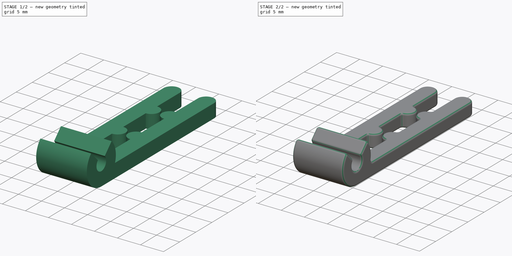
[diagram: build sequence overview — one tinted view per stage of 2, left to right]
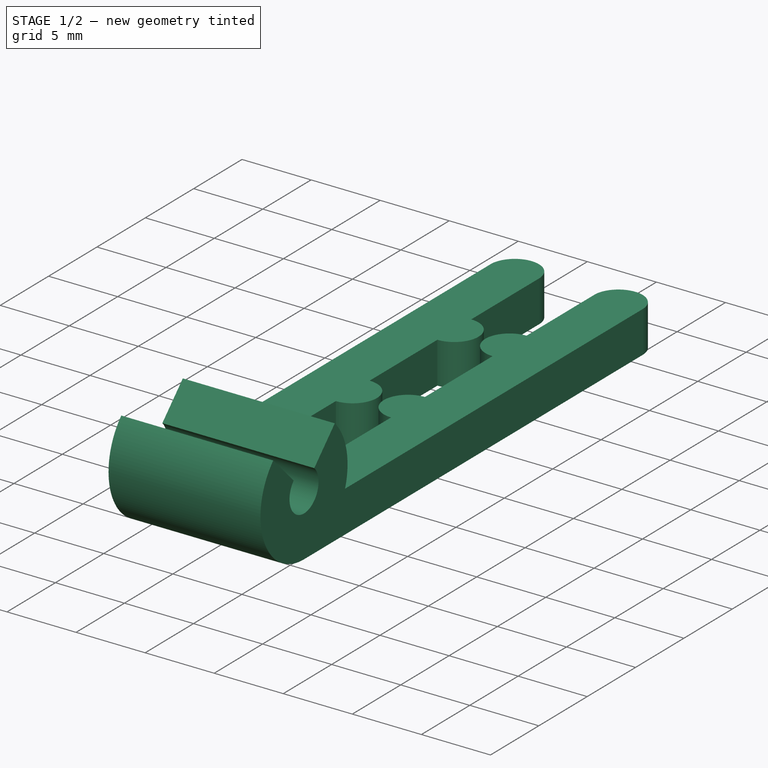
[diagram: stage 1 of 2 — iso view after this stage's code; geometry added in this stage tinted green]
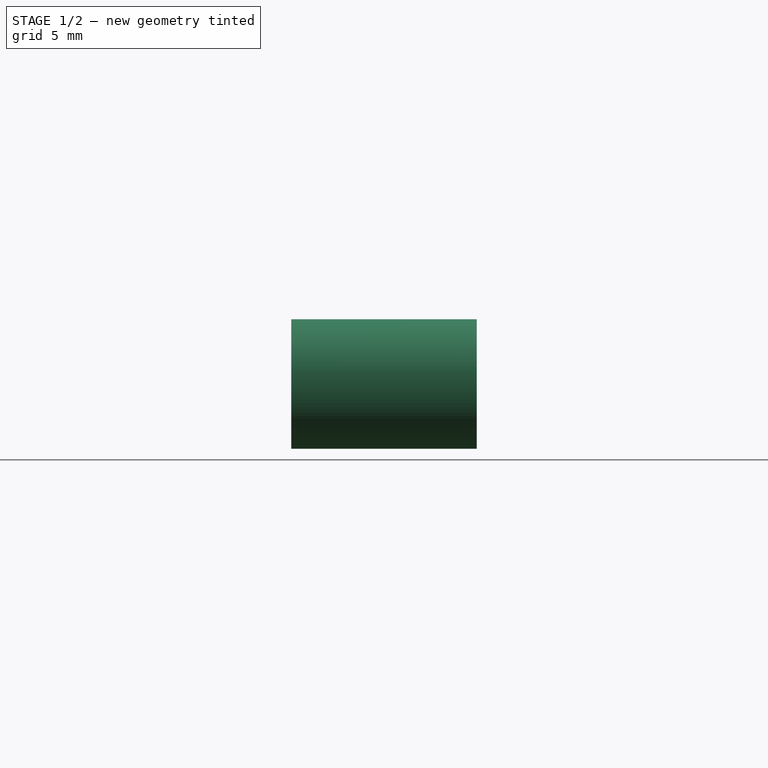
[diagram: stage 1 of 2 — front view after this stage's code; geometry added in this stage tinted green]
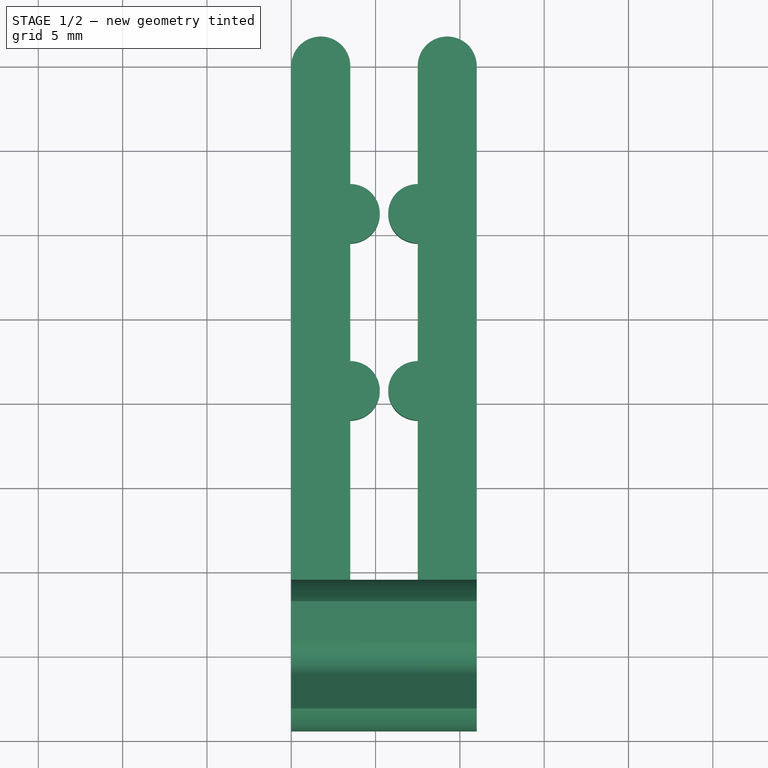
[diagram: stage 1 of 2 — top view after this stage's code; geometry added in this stage tinted green]
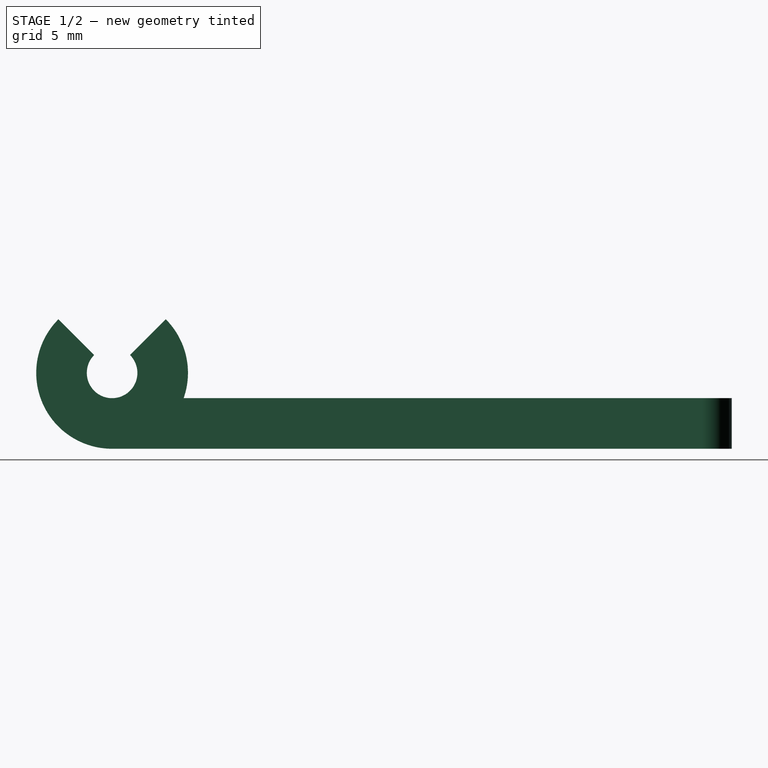
[diagram: stage 1 of 2 — right view after this stage's code; geometry added in this stage tinted green]
FCSTD DOCUMENT  (FreeCAD 0.18R4 (GitTag))
Label: sock_clip
License: All rights reserved
LicenseURL: http://en.wikipedia.org/wiki/All_rights_reserved
objects: Sketcher::SketchObject×3, PartDesign::Pad×2, PartDesign::Body×2, Part::MultiFuse×1, Part::Fillet×1
note: 11 computed .brp shape members not serialized (recipe doc carries the construction recipe); baked Part::Feature solids carry a one-line shape summary decoded from their .brp

FEATURE [Sketcher::SketchObject] Sketch  label="SketchXY"
  MapMode = 5
  Support = -> [XY_Plane001]
  expr: Constraints[19] = Constraints.clip_thickness
  expr: Constraints[53] = Constraints.clip_thickness
  expr: Constraints[52] = Constraints.clip_thickness
  expr: Constraints[51] = Constraints.clip_thickness
  expr: Constraints[33] = Constraints.clip_thickness
  expr: Constraints[20] = 2 * Constraints.clip_thickness
  expr: Constraints[14] = Constraints.clip_thickness
  sketch-geometry (19):
    g0: LineSegment StartX=0 StartY=0 StartZ=0 EndX=0 EndY=35 EndZ=0
    g1: LineSegment [constr] StartX=3.5 StartY=35 StartZ=0 EndX=0 EndY=35 EndZ=0
    g2: ArcOfCircle CenterX=1.75 CenterY=35 CenterZ=0 NormalX=0 NormalY=0 NormalZ=1 AngleXU=0 Radius=1.75 StartAngle=-1.8e-15 EndAngle=3.14159
    g3: LineSegment StartX=3.5 StartY=35 StartZ=0 EndX=3.5 EndY=28 EndZ=0
    g4: ArcOfCircle CenterX=3.5 CenterY=26.25 CenterZ=0 NormalX=0 NormalY=0 NormalZ=1 AngleXU=0 Radius=1.75 StartAngle=4.71239 EndAngle=7.85398
    g5: LineSegment StartX=3.5 StartY=24.5 StartZ=0 EndX=3.5 EndY=17.5 EndZ=0
    g6: ArcOfCircle CenterX=3.5 CenterY=15.75 CenterZ=0 NormalX=0 NormalY=0 NormalZ=1 AngleXU=0 Radius=1.75 StartAngle=4.71239 EndAngle=7.85398
    g7: LineSegment StartX=7.5 StartY=17.5 StartZ=0 EndX=7.5 EndY=24.5 EndZ=0
    g8: LineSegment StartX=7.5 StartY=28 StartZ=0 EndX=7.5 EndY=35 EndZ=0
    g9: LineSegment StartX=11 StartY=35 StartZ=0 EndX=11 EndY=0 EndZ=0
    g10: LineSegment StartX=3.5 StartY=14 StartZ=0 EndX=3.5 EndY=3.5 EndZ=0
    g11: LineSegment StartX=3.5 StartY=3.5 StartZ=0 EndX=7.5 EndY=3.5 EndZ=0
    g12: LineSegment StartX=7.5 StartY=3.5 StartZ=0 EndX=7.5 EndY=14 EndZ=0
    g13: LineSegment StartX=11 StartY=0 StartZ=0 EndX=0 EndY=0 EndZ=0
    g14: ArcOfCircle CenterX=7.5 CenterY=15.75 CenterZ=0 NormalX=0 NormalY=0 NormalZ=1 AngleXU=0 Radius=1.75 StartAngle=1.5708 EndAngle=4.71239
    g15: ArcOfCircle CenterX=7.5 CenterY=26.25 CenterZ=0 NormalX=0 NormalY=0 NormalZ=1 AngleXU=0 Radius=1.75 StartAngle=1.5708 EndAngle=4.71239
    g16: ArcOfCircle CenterX=9.25 CenterY=35 CenterZ=0 NormalX=0 NormalY=0 NormalZ=1 AngleXU=0 Radius=1.75 StartAngle=4e-16 EndAngle=3.14159
    g17: LineSegment [constr] StartX=5.75 StartY=15.75 StartZ=0 EndX=5.25 EndY=15.75 EndZ=0
    g18: LineSegment [constr] StartX=7.5 StartY=15.75 StartZ=0 EndX=5.75 EndY=15.75 EndZ=0
  constraints (61):
    c: Coincident(g0,g-1)
    c: Vertical(g0)
    c: DistanceY(g0,g0) = 35  'clip_height'
    c: Coincident(g1,g0)
    c: Horizontal(g1)
    c: Coincident(g2,g0)
    c: Coincident(g2,g1)
    c: PointOnObject(g2,g1)
    c: DistanceX(g1,g1) = 3.5  'clip_thickness'
    c: Coincident(g3,g2)
    c: Vertical(g3)
    c: Coincident(g4,g3)
    c: Vertical(g4,g3)
    c: Vertical(g4,g3)
    c: DistanceY(g4,g3) = 3.5
    c: Vertical(g5)
    c: Coincident(g6,g5)
    c: Vertical(g5,g6)
    c: Vertical(g6,g6)
    c: DistanceY(g6,g5) = 3.5
    c: DistanceY(g3,g3) = 7
    c: Equal(g3,g5)
    c: Coincident(g5,g4)
    c: Vertical(g7)
    c: Vertical(g8)
    c: PointOnObject(g9,g-1)
    c: Vertical(g9)
    c: Vertical(g10)
    c: Coincident(g10,g11)
    c: Horizontal(g11)
    c: Coincident(g11,g12)
    c: Vertical(g12)
    c: Coincident(g10,g6)
    c: DistanceY(g0,g10) = 3.5
    c: Coincident(g13,g9)
    c: Coincident(g13,g0)
    c: Coincident(g14,g12)
    c: Coincident(g14,g7)
    c: Coincident(g15,g7)
    c: Coincident(g15,g8)
    c: Coincident(g16,g8)
    c: Coincident(g16,g9)
    c: Vertical(g14,g7)
    c: Vertical(g7,g12)
    c: Vertical(g7,g15)
    c: Vertical(g15,g8)
    c: Horizontal(g8,g16)
    c: Horizontal(g16,g9)
    c: Equal(g8,g3)
    c: Equal(g7,g5)
    c: Equal(g9,g0)
    c: DistanceY(g7,g8) = 3.5
    c: DistanceY(g12,g7) = 3.5
    c: DistanceX(g8,g9) = 3.5
    c: PointOnObject(g17,g14)
    c: PointOnObject(g17,g6)
    c: DistanceX(g17,g17) = 0.5  'clip_spacing'
    c: Coincident(g18,g14)
    c: Coincident(g18,g17)
    c: Horizontal(g18)
    c: Parallel(g18,g17)
FEATURE [Sketcher::SketchObject] Sketch001  label="SketchXZ"
  ExternalGeometry = -> [Sketch]
  MapMode = 5
  Placement = pos=(0,0,0) rot=(1,0,0;1.5708rad)
  Support = -> [XZ_Plane001]
  sketch-geometry (4):
    g0: LineSegment [constr] StartX=0 StartY=0 StartZ=0 EndX=11 EndY=0 EndZ=0
    g1: LineSegment [constr] StartX=11 StartY=0 StartZ=0 EndX=11 EndY=3 EndZ=0
    g2: LineSegment [constr] StartX=11 StartY=3 StartZ=0 EndX=0 EndY=3 EndZ=0
    g3: LineSegment [constr] StartX=0 StartY=3 StartZ=0 EndX=0 EndY=0 EndZ=0
  constraints (10):
    c: Coincident(g0,g1)
    c: Coincident(g1,g2)
    c: Coincident(g2,g3)
    c: Coincident(g3,g0)
    c: Horizontal(g2)
    c: Vertical(g1)
    c: Vertical(g3)
    c: Coincident(g0,g-3)
    c: DistanceY(g1,g1) = 3  'clip_thickness'
    c: Coincident(g0,g-1)
FEATURE [PartDesign::Pad] Pad
  Length = 3
  Length2 = 100
  Profile = -> Sketch
  Refine = true
  Type = 0
  expr: Length = SketchXZ.Constraints.clip_thickness
FEATURE [PartDesign::Body] Body
  Group = -> [Sketch,Sketch001,Pad]
  Origin = -> Origin001
  Tip = -> Pad
FEATURE [Sketcher::SketchObject] Sketch003
  MapMode = 5
  Placement = pos=(0,0,0) rot=(0.57735,0.57735,0.57735;2.0944rad)
  Support = -> [YZ_Plane]
  expr: Constraints[12] = SketchXZ.Constraints.clip_thickness + Constraints.hole_r
  expr: Constraints.hole_wall = SketchXZ.Constraints.clip_thickness
  sketch-geometry (4):
    g0: ArcOfCircle CenterX=0 CenterY=4.5 CenterZ=0 NormalX=0 NormalY=0 NormalZ=1 AngleXU=0 Radius=4.5 StartAngle=2.35619 EndAngle=7.06858
    g1: ArcOfCircle CenterX=0 CenterY=4.5 CenterZ=0 NormalX=0 NormalY=0 NormalZ=1 AngleXU=0 Radius=1.5 StartAngle=2.35619 EndAngle=7.06858
    g2: LineSegment StartX=1.06066 StartY=5.56066 StartZ=0 EndX=3.18198 EndY=7.68198 EndZ=0
    g3: LineSegment StartX=-1.06066 StartY=5.56066 StartZ=0 EndX=-3.18198 EndY=7.68198 EndZ=0
  constraints (13):
    c: Coincident(g1,g0)
    c: Coincident(g2,g1)
    c: Coincident(g2,g0)
    c: Coincident(g3,g0)
    c: Perpendicular(g1,g3)
    c: Angle(g1) = 4.71239
    c: Perpendicular(g0,g2)
    c: Distance(g2) = 3  'hole_wall'
    c: Radius(g1) = 1.5  'hole_r'
    c: Coincident(g1,g3)
    c: DistanceY(g1,g1) = 0
    c: DistanceX(g0,g-1) = 0
    c: DistanceY(g-1,g0) = 4.5
FEATURE [PartDesign::Pad] Pad001
  Length = 11
  Length2 = 100
  Placement = pos=(0,0,0) rot=(0.57735,0.57735,0.57735;2.0944rad)
  Profile = -> Sketch003
  Refine = true
  Type = 0
  expr: Length = SketchXY.Constraints.clip_thickness * 3 + SketchXY.Constraints.clip_spacing
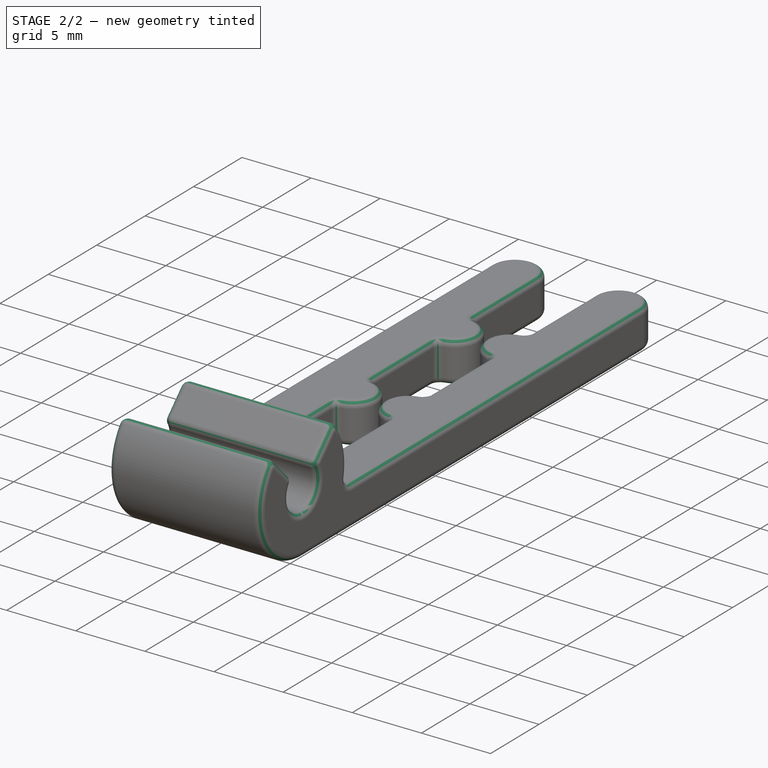
[diagram: stage 2 of 2 — iso view after this stage's code; geometry added in this stage tinted green]
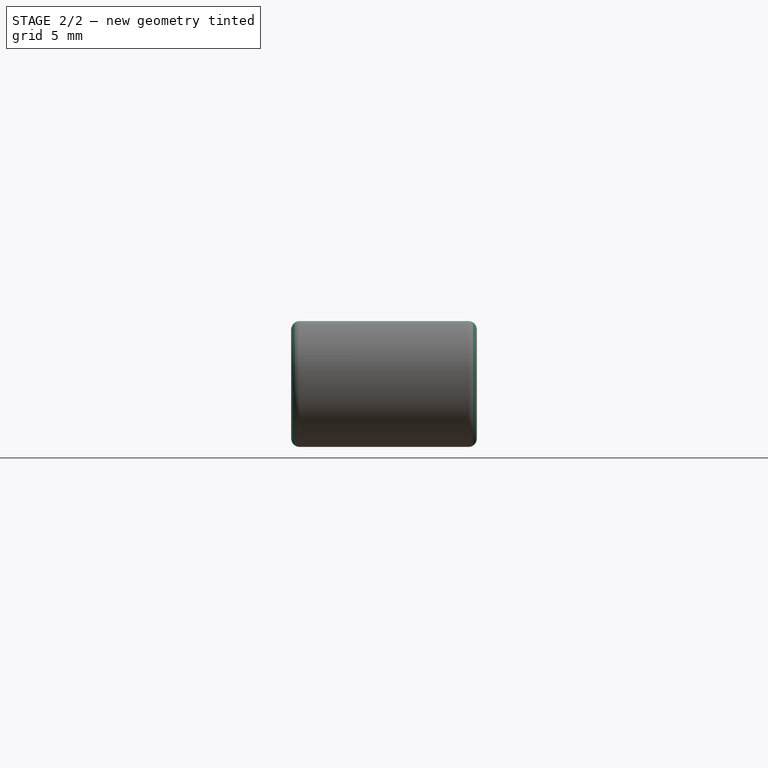
[diagram: stage 2 of 2 — front view after this stage's code; geometry added in this stage tinted green]
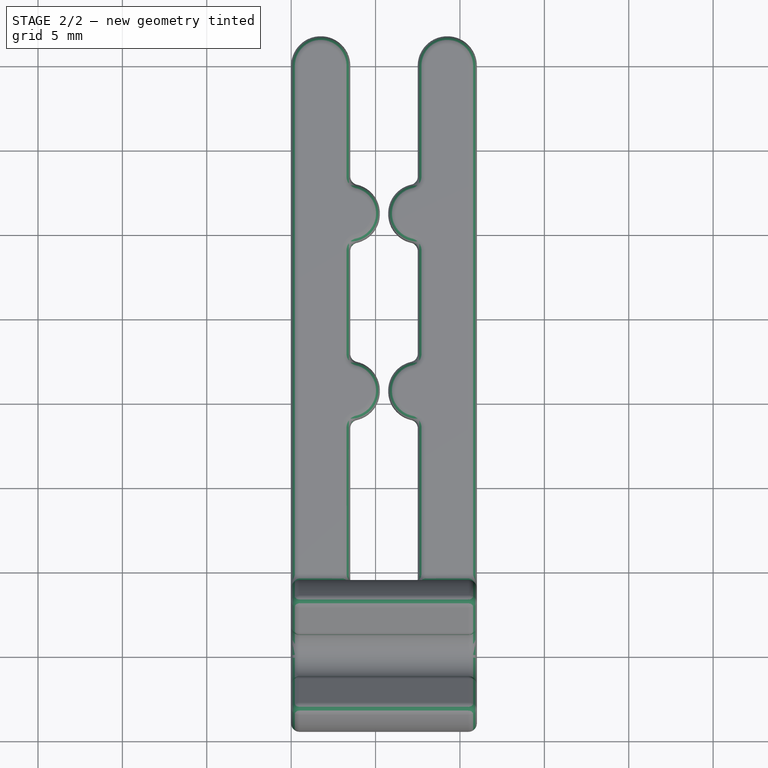
[diagram: stage 2 of 2 — top view after this stage's code; geometry added in this stage tinted green]
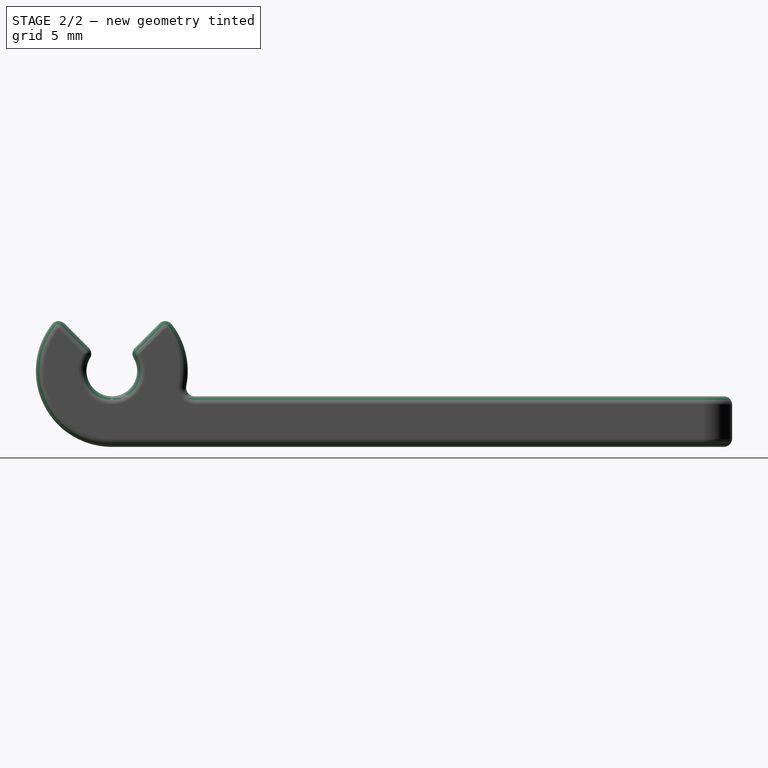
[diagram: stage 2 of 2 — right view after this stage's code; geometry added in this stage tinted green]
FEATURE [PartDesign::Body] Body001
  Group = -> [Sketch003,Pad001]
  Origin = -> Origin
  Tip = -> Pad001
FEATURE [Part::MultiFuse] Fusion
  Refine = true
  Shapes = -> [Body001,Body]
FEATURE [Part::Fillet] Fillet
  Base = -> Fusion
  Edges = 63 edges r=0.5: [Edge1,Edge2,Edge3,Edge4,Edge5,Edge6,Edge7,Edge8,Edge9,Edge10,Edge11,Edge12,Edge13,Edge14,Edge15,Edge16,Edge17,Edge18,Edge19,Edge20,Edge21,Edge22,Edge23,Edge24,Edge25,Edge26,Edge27,Edge28,Edge29,Edge30,Edge31,Edge32,Edge33,Edge35,Edge36,Edge37,Edge38,Edge39,Edge40,Edge41,Edge42,Edge43,Edge44,Edge45,+19 more]
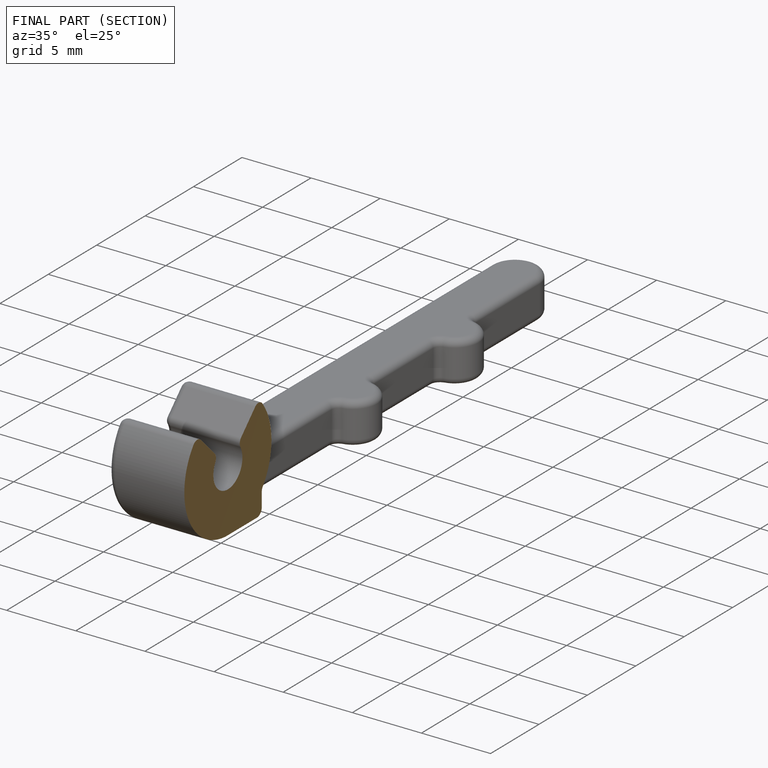
[diagram: finished part — half-section view (interior)]
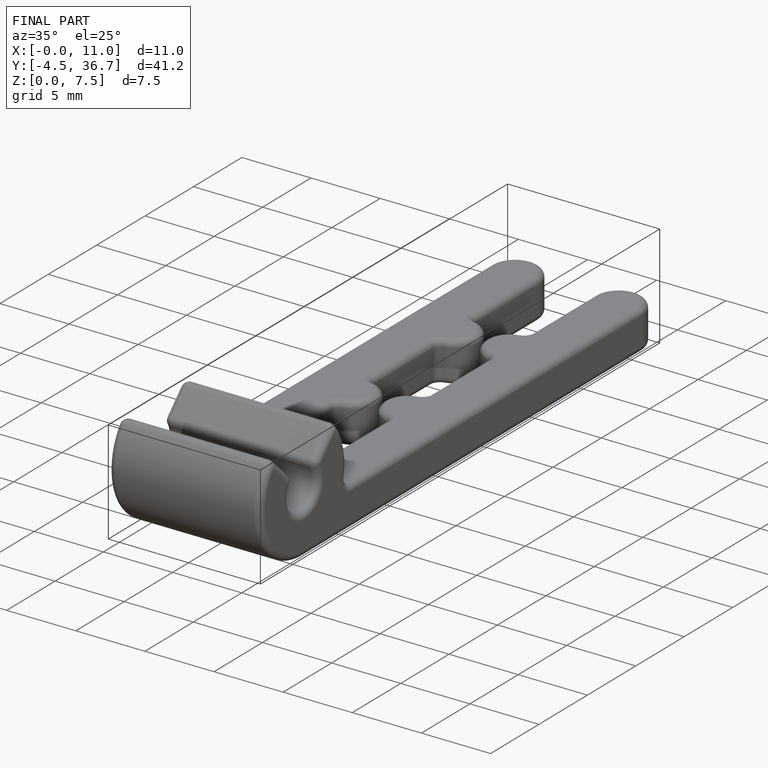
[diagram: finished part — iso view with bounding-box wireframe]
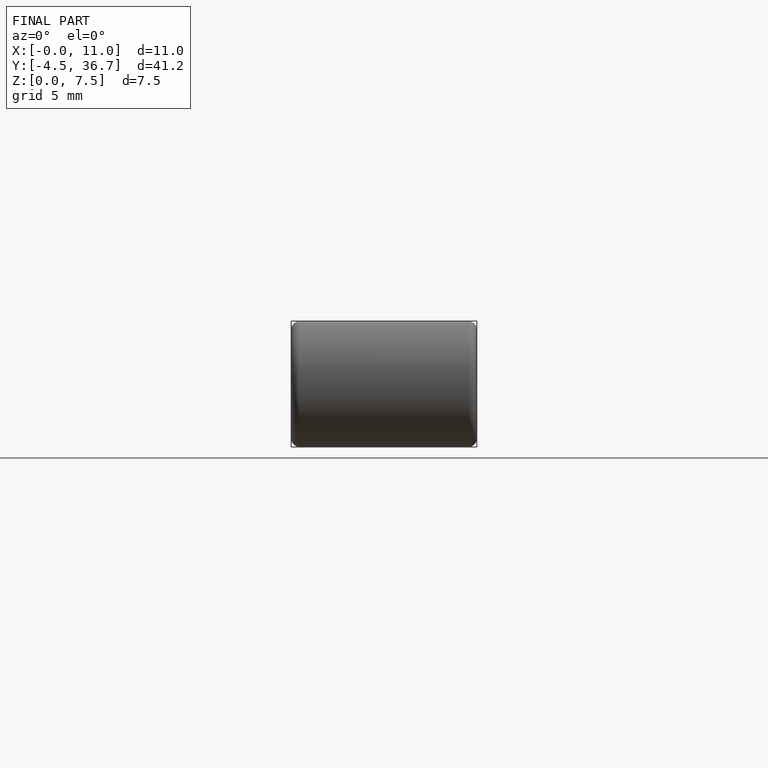
[diagram: finished part — front view with bounding-box wireframe]
